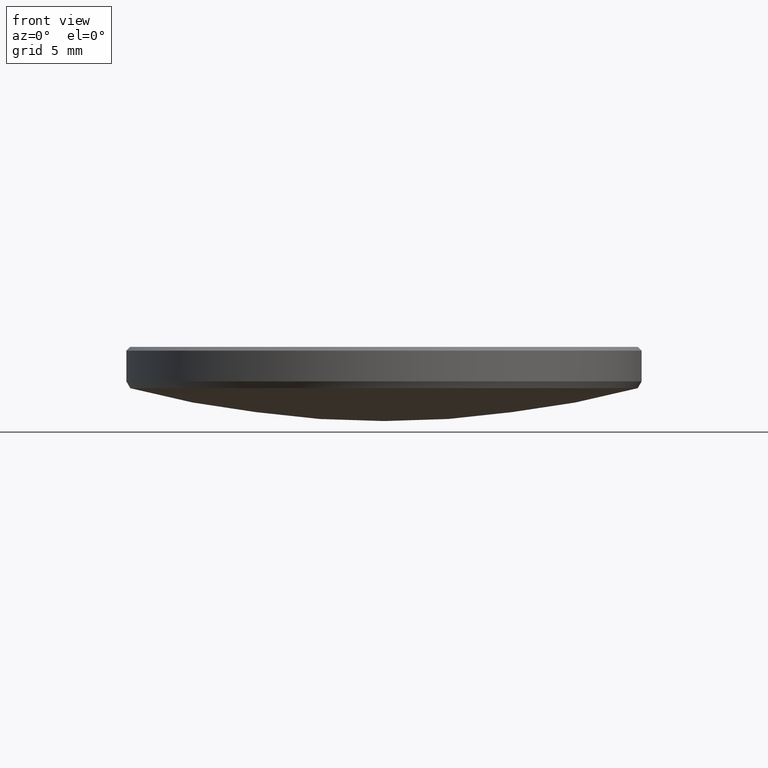
[diagram: clean part render]
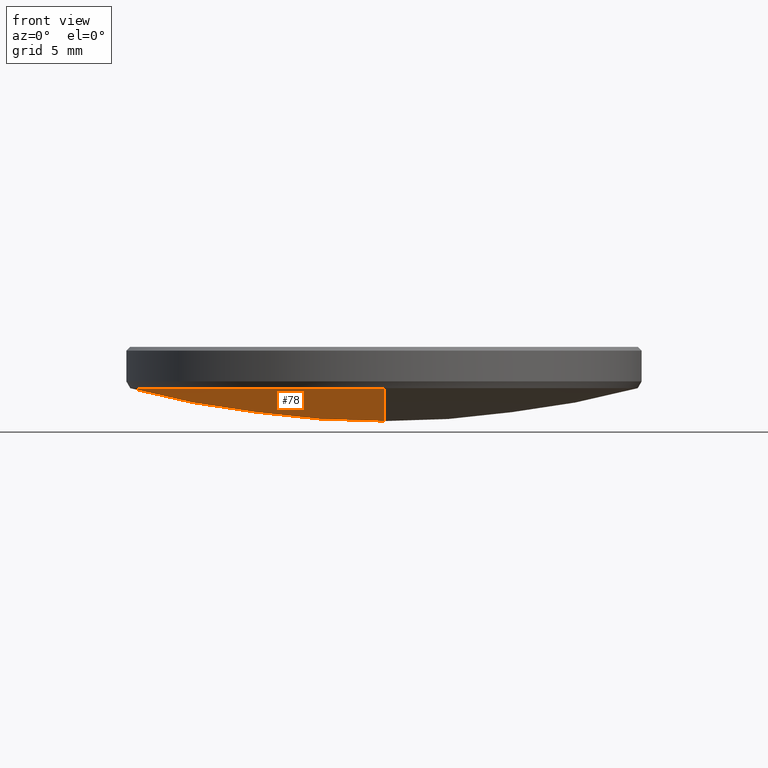
[diagram: same view with one face highlighted and labeled with its STEP entity id]
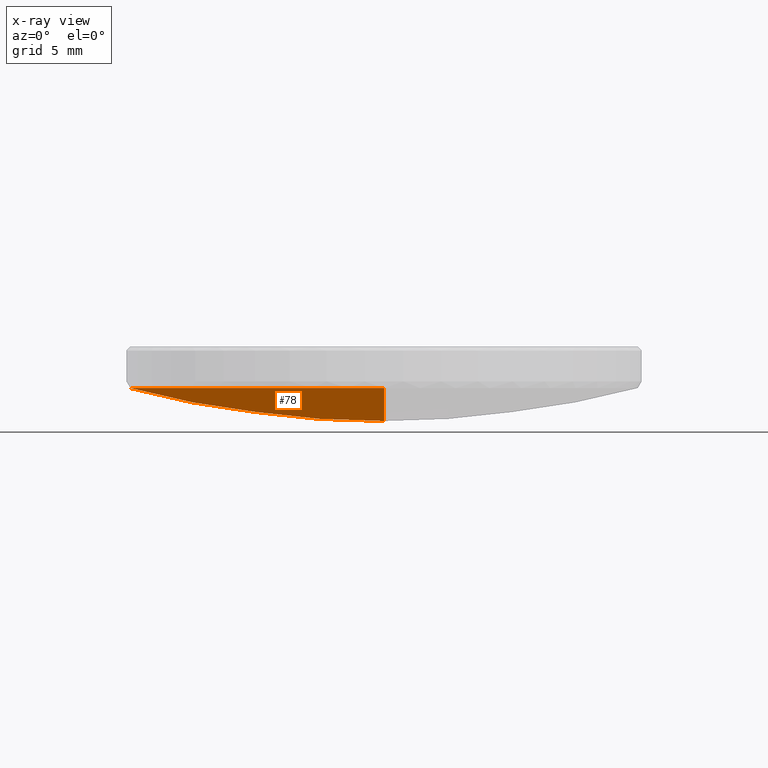
[diagram: x-ray of the same camera — body ghosted, the highlighted face saturated]
A machine part, front view. The second image highlights one B-rep face of the part: STEP entity #78.
The next image is the same camera in x-ray: the body ghosted, the highlighted face saturated — about 0% of this face is hidden behind the body in this view.
In plain terms, the highlighted spherical surface has radius 49.06 mm.
Its self-contained STEP definition (entity closure, byte-faithful):
#10 = CARTESIAN_POINT ( 'NONE',  ( 0.000000000000000000, 0.000000000000000000, 51.38769460524535049 ) ) ;
#25 = AXIS2_PLACEMENT_3D ( 'NONE', #56, #67, #166 ) ;
#44 = AXIS2_PLACEMENT_3D ( 'NONE', #218, #214, #216 ) ;
#53 = VERTEX_POINT ( 'NONE', #238 ) ;
#56 = CARTESIAN_POINT ( 'NONE',  ( 0.000000000000000000, 0.000000000000000000, 3.948723936848863580 ) ) ;
#60 = DIRECTION ( 'NONE',  ( -1.000000000000000000, 1.224646799147353207E-16, 0.000000000000000000 ) ) ;
#67 = DIRECTION ( 'NONE',  ( 0.000000000000000000, 0.000000000000000000, -1.000000000000000000 ) ) ;
#78 = ADVANCED_FACE ( 'NONE', ( #92 ), #120, .T. ) ;
#86 = DIRECTION ( 'NONE',  ( 0.000000000000000000, 0.000000000000000000, -1.000000000000000000 ) ) ;
#92 = FACE_OUTER_BOUND ( 'NONE', #196, .T. ) ;
#96 = AXIS2_PLACEMENT_3D ( 'NONE', #305, #181, #86 ) ;
#120 = SPHERICAL_SURFACE ( 'NONE', #302, 49.05999999999999517 ) ;
#124 = EDGE_CURVE ( 'NONE', #53, #277, #125, .T. ) ;
#125 = CIRCLE ( 'NONE', #44, 12.50710445798774728 ) ;
#130 = VERTEX_POINT ( 'NONE', #316 ) ;
#133 = CIRCLE ( 'NONE', #314, 49.05999999999999517 ) ;
#134 = DIRECTION ( 'NONE',  ( -1.000000000000000000, 0.000000000000000000, 0.000000000000000000 ) ) ;
#150 = VERTEX_POINT ( 'NONE', #325 ) ;
#152 = ORIENTED_EDGE ( 'NONE', *, *, #271, .T. ) ;
#161 = CARTESIAN_POINT ( 'NONE',  ( -12.50710445798774728, 1.543489989512383738E-15, 3.948723936848863580 ) ) ;
#166 = DIRECTION ( 'NONE',  ( 1.000000000000000000, 0.000000000000000000, 0.000000000000000000 ) ) ;
#170 = CIRCLE ( 'NONE', #25, 12.50710445798774728 ) ;
#176 = CIRCLE ( 'NONE', #96, 49.05999999999999517 ) ;
#181 = DIRECTION ( 'NONE',  ( 1.000000000000000000, -0.000000000000000000, 0.000000000000000000 ) ) ;
#185 = DIRECTION ( 'NONE',  ( 0.000000000000000000, 1.000000000000000000, 0.000000000000000000 ) ) ;
#196 = EDGE_LOOP ( 'NONE', ( #204, #152, #307, #232 ) ) ;
#204 = ORIENTED_EDGE ( 'NONE', *, *, #266, .F. ) ;
#214 = DIRECTION ( 'NONE',  ( 0.000000000000000000, 0.000000000000000000, -1.000000000000000000 ) ) ;
#216 = DIRECTION ( 'NONE',  ( 1.000000000000000000, 0.000000000000000000, 0.000000000000000000 ) ) ;
#218 = CARTESIAN_POINT ( 'NONE',  ( 0.000000000000000000, 0.000000000000000000, 3.948723936848863580 ) ) ;
#232 = ORIENTED_EDGE ( 'NONE', *, *, #306, .T. ) ;
#238 = CARTESIAN_POINT ( 'NONE',  ( -1.531678544107628650E-15, -12.50710445798775083, 3.948723936848860028 ) ) ;
#239 = CARTESIAN_POINT ( 'NONE',  ( 0.000000000000000000, 0.000000000000000000, 51.38769460524535049 ) ) ;
#266 = EDGE_CURVE ( 'NONE', #150, #130, #176, .T. ) ;
#271 = EDGE_CURVE ( 'NONE', #150, #53, #133, .T. ) ;
#277 = VERTEX_POINT ( 'NONE', #161 ) ;
#288 = DIRECTION ( 'NONE',  ( -1.224646799147353207E-16, -1.000000000000000000, 0.000000000000000000 ) ) ;
#302 = AXIS2_PLACEMENT_3D ( 'NONE', #10, #134, #185 ) ;
#305 = CARTESIAN_POINT ( 'NONE',  ( 0.000000000000000000, 0.000000000000000000, 51.38769460524535049 ) ) ;
#306 = EDGE_CURVE ( 'NONE', #277, #130, #170, .T. ) ;
#307 = ORIENTED_EDGE ( 'NONE', *, *, #124, .T. ) ;
#314 = AXIS2_PLACEMENT_3D ( 'NONE', #239, #60, #288 ) ;
#316 = CARTESIAN_POINT ( 'NONE',  ( 0.000000000000000000, 12.50710445798775083, 3.948723936848860028 ) ) ;
#325 = CARTESIAN_POINT ( 'NONE',  ( 0.000000000000000000, 3.004058598308457002E-15, 2.327694605245358872 ) ) ;